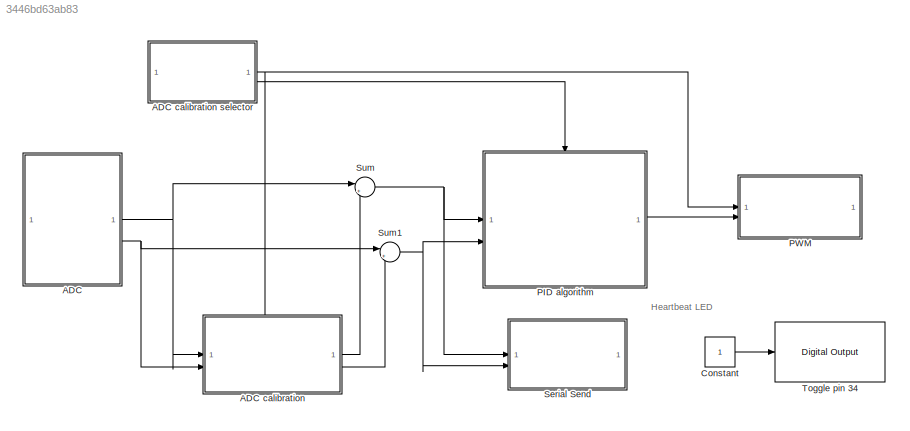
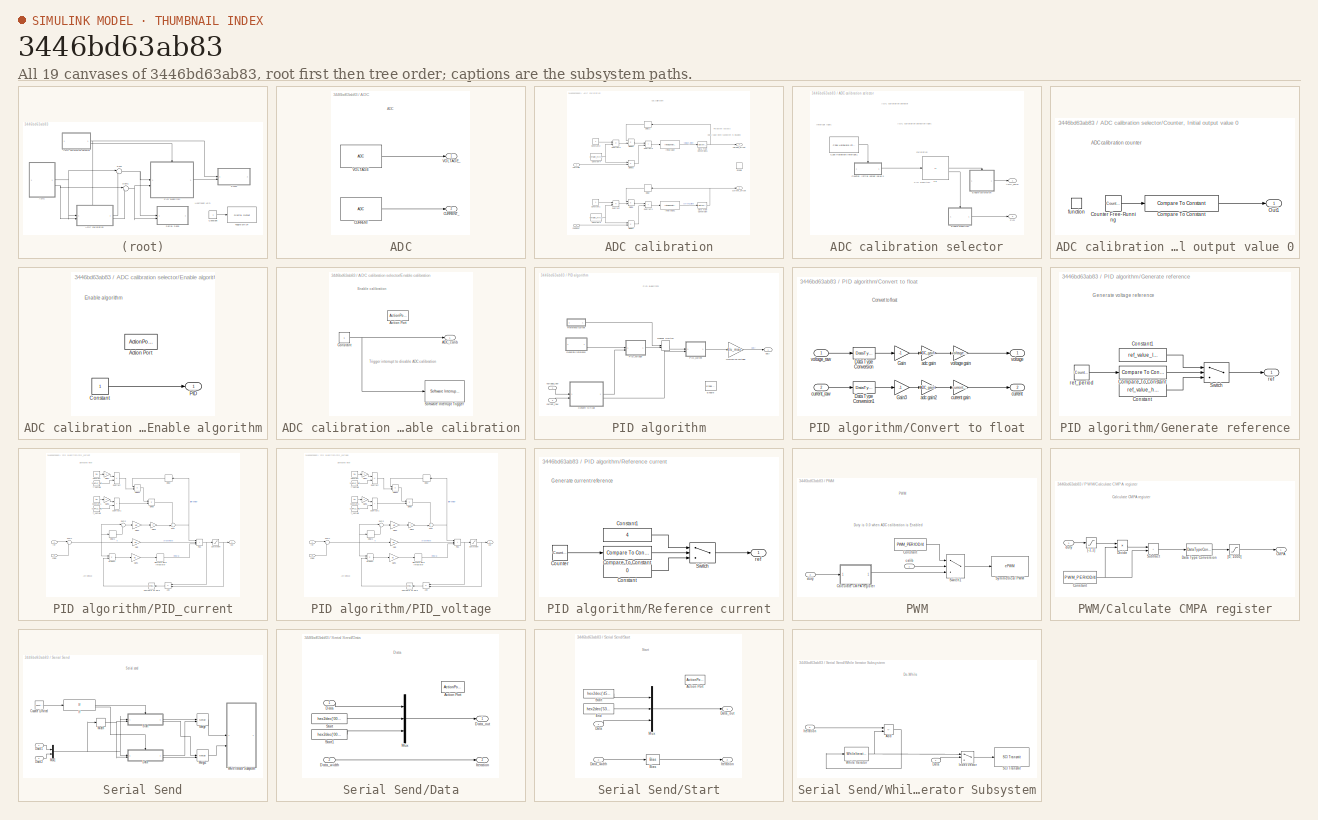
[diagram: thumbnail index - all 19 canvases of the model, root first then tree order]
MODEL slx_3446bd63ab83
KIND model
CONFIG AbsTol = auto
CONFIG EnableMultiTasking = off
CONFIG FixedStep = 0.0001
CONFIG InitFcn = parametri_embedded
CONFIG MaxStep = auto
CONFIG MinStep = auto
CONFIG RelTol = 1e-3
CONFIG SampleTimeConstraint = Unconstrained
CONFIG SolverName = VariableStepAuto
CONFIG StartTime = 0.0
CONFIG StopTime = 0.04
BLOCK [SubSystem] ADC
BLOCK [SubSystem] ADC calibration
BLOCK [SubSystem] ADC calibration selector
BLOCK [Outport] ADC calibration selector/ADC_calib
BLOCK [Reference] ADC calibration selector/C28x Hardware Interrupt1  REF=c2000lib/Scheduling/C28x Hardware Interrupt
  SourceBlock = c2000lib/Scheduling/C28x Hardware Interrupt
  SourceType = C28x Interrupt Block
BLOCK [SubSystem] ADC calibration selector/Counter, Initial output value 0
  TreatAsAtomicUnit = on
BLOCK [Reference] ADC calibration selector/Counter, Initial output value 0/Compare To Constant  REF=simulink/Logic and Bit
Operations/Compare
To Constant
  SourceBlock = simulink/Logic and Bit\nOperations/Compare\nTo Constant
  SourceType = Compare To Constant
BLOCK [Reference] ADC calibration selector/Counter, Initial output value 0/Counter Free-Running  REF=simulink/Sources/Counter
Free-Running
  SourceBlock = simulink/Sources/Counter\nFree-Running
  SourceType = Counter Free-Running
BLOCK [Outport] ADC calibration selector/Counter, Initial output value 0/Out1
  InitialOutput = [0]
BLOCK [TriggerPort] ADC calibration selector/Counter, Initial output value 0/function
  StatesWhenEnabling = held
  TriggerType = function-call
  VariantControl = (inherit)
BLOCK [SubSystem] ADC calibration selector/Enable algorithm
  TreatAsAtomicUnit = on
BLOCK [ActionPort] ADC calibration selector/Enable algorithm/Action Port
  ActionPortLabel = else
BLOCK [Constant] ADC calibration selector/Enable algorithm/Constant
BLOCK [Outport] ADC calibration selector/Enable algorithm/PID
  InitialOutput = [0]
  OutputWhenDisabled = reset
BLOCK [SubSystem] ADC calibration selector/Enable calibration
  TreatAsAtomicUnit = on
BLOCK [Outport] ADC calibration selector/Enable calibration/ADC_calib
  InitialOutput = [0]
  OutputWhenDisabled = reset
BLOCK [ActionPort] ADC calibration selector/Enable calibration/Action Port
  ActionPortLabel = if(u1 == 0)
BLOCK [Constant] ADC calibration selector/Enable calibration/Constant
BLOCK [Reference] ADC calibration selector/Enable calibration/Software Interrupt Trigger  REF=c280xlib/Software Interrupt Trigger
  LibrarySourceBlock = c2806xlib/Software Interrupt Trigger
  SourceBlock = c280xlib/Software Interrupt Trigger
  SourceType = Software Interrupt Trigger
BLOCK [If] ADC calibration selector/If1
  IfExpression = u1 == 0
BLOCK [Outport] ADC calibration selector/PID
  Port = 2
BLOCK [Inport] ADC calibration/CURRENT
  Port = 2
BLOCK [Constant] ADC calibration/Constant1
BLOCK [Constant] ADC calibration/Constant2
BLOCK [Constant] ADC calibration/Constant3
  Value = offset_filter
BLOCK [Constant] ADC calibration/Constant4
  Value = offset_filter
BLOCK [DataTypeConversion] ADC calibration/Data Type Conversion
  OutDataTypeStr = int16
  RndMeth = Floor
  SaturateOnIntegerOverflow = off
BLOCK [DataTypeConversion] ADC calibration/Data Type Conversion1
  OutDataTypeStr = int16
  RndMeth = Floor
  SaturateOnIntegerOverflow = off
BLOCK [Delay] ADC calibration/Delay
  DelayLength = 1
  InputPortMap = u0
  NameLocation = top
BLOCK [Delay] ADC calibration/Delay1
  DelayLength = 1
  InputPortMap = u0
  NameLocation = top
BLOCK [Product] ADC calibration/Divide
  Inputs = **
BLOCK [Product] ADC calibration/Divide1
  Inputs = **
BLOCK [Product] ADC calibration/Divide2
  Inputs = **
BLOCK [Product] ADC calibration/Divide3
  Inputs = **
BLOCK [EnablePort] ADC calibration/Enable
BLOCK [InitialCondition] ADC calibration/Initial value
  Value = voltage_offset
BLOCK [InitialCondition] ADC calibration/Initial value1
  Value = current_offset
BLOCK [Sum] ADC calibration/Subtract
  IconShape = rectangular
  Inputs = +-
BLOCK [Sum] ADC calibration/Subtract1
  IconShape = rectangular
BLOCK [Sum] ADC calibration/Subtract2
  IconShape = rectangular
  Inputs = +-
BLOCK [Sum] ADC calibration/Subtract3
  IconShape = rectangular
BLOCK [Inport] ADC calibration/VOLTAGE
BLOCK [Outport] ADC calibration/current_offset
  OutDataTypeStr = int16
  Port = 2
BLOCK [Outport] ADC calibration/voltage_offset
  OutDataTypeStr = int16
BLOCK [Reference] ADC/CURRENT  REF=c2802xlib/ADC
  LibrarySourceBlock = c2806xlib/ADC
  SourceBlock = c2802xlib/ADC
  SourceType = ADC Type 3-5
  UserDataPersistent = on
BLOCK [Outport] ADC/CURRENT_
  Port = 2
BLOCK [Reference] ADC/VOLTAGE  REF=c2802xlib/ADC
  LibrarySourceBlock = c2806xlib/ADC
  SourceBlock = c2802xlib/ADC
  SourceType = ADC Type 3-5
  UserDataPersistent = on
BLOCK [Outport] ADC/VOLTAGE_
BLOCK [Constant] Constant
  SampleTime = 0.7
BLOCK [SubSystem] PID algorithm
BLOCK [SubSystem] PID algorithm/Convert to float
BLOCK [DataTypeConversion] PID algorithm/Convert to float/Data Type Conversion
  OutDataTypeStr = single
  RndMeth = Floor
  SaturateOnIntegerOverflow = off
BLOCK [DataTypeConversion] PID algorithm/Convert to float/Data Type Conversion1
  OutDataTypeStr = single
  RndMeth = Floor
  SaturateOnIntegerOverflow = off
BLOCK [Gain] PID algorithm/Convert to float/Gain
  Gain = -1
BLOCK [Gain] PID algorithm/Convert to float/Gain3
  Gain = -1
BLOCK [Gain] PID algorithm/Convert to float/adc gain
  Gain = ADC_gain
BLOCK [Gain] PID algorithm/Convert to float/adc gain2
  Gain = ADC_gain
BLOCK [Outport] PID algorithm/Convert to float/current
  Port = 2
BLOCK [Gain] PID algorithm/Convert to float/current gain
  Gain = current_gain
BLOCK [Inport] PID algorithm/Convert to float/current_raw
  Port = 2
BLOCK [Outport] PID algorithm/Convert to float/voltage
BLOCK [Gain] PID algorithm/Convert to float/voltage gain
  Gain = voltage_gain
BLOCK [Inport] PID algorithm/Convert to float/voltage_raw
BLOCK [EnablePort] PID algorithm/Enable
BLOCK [SubSystem] PID algorithm/Generate reference
BLOCK [Reference] PID algorithm/Generate reference/Compare To Constant  REF=simulink/Logic and Bit
Operations/Compare
To Constant
  SourceBlock = simulink/Logic and Bit\nOperations/Compare\nTo Constant
  SourceType = Compare To Constant
BLOCK [Constant] PID algorithm/Generate reference/Constant
  SampleTime = -1
  Value = ref_value_high
BLOCK [Constant] PID algorithm/Generate reference/Constant1
  SampleTime = -1
  Value = ref_value_low
BLOCK [Switch] PID algorithm/Generate reference/Switch
  Criteria = u2 > Threshold
  InputSameDT = off
  SaturateOnIntegerOverflow = off
BLOCK [Outport] PID algorithm/Generate reference/ref
BLOCK [Reference] PID algorithm/Generate reference/ref_period  REF=simulink/Sources/Counter
Limited
  SourceBlock = simulink/Sources/Counter\nLimited
  SourceType = Counter Limited
BLOCK [ManualSwitch] PID algorithm/Manual Switch
  CurrentSetting = 0
BLOCK [Gain] PID algorithm/Normalize voltage
  Gain = 1/u_max
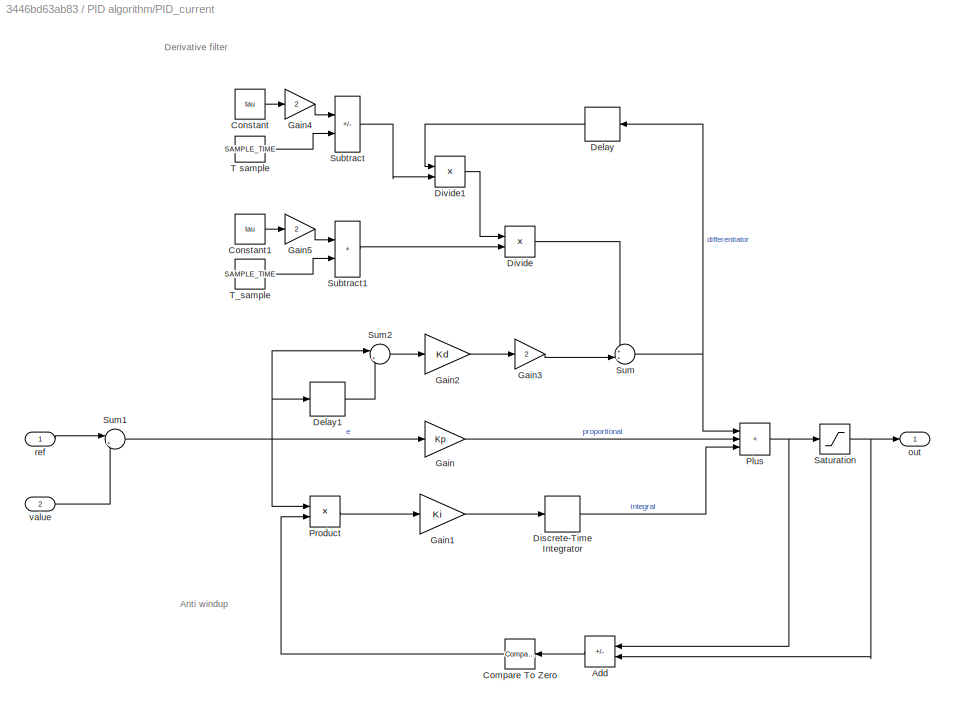
BLOCK [SubSystem] PID algorithm/PID_current
BLOCK [Sum] PID algorithm/PID_current/Add
  IconShape = rectangular
  Inputs = +-
  NameLocation = top
BLOCK [Reference] PID algorithm/PID_current/Compare To Zero  REF=simulink/Logic and Bit
Operations/Compare
To Zero
  NameLocation = top
  SourceBlock = simulink/Logic and Bit\nOperations/Compare\nTo Zero
  SourceType = Compare To Zero
BLOCK [Constant] PID algorithm/PID_current/Constant
  Value = tau
BLOCK [Constant] PID algorithm/PID_current/Constant1
  Value = tau
BLOCK [Delay] PID algorithm/PID_current/Delay
  DelayLength = 1
  InputPortMap = u0
  NameLocation = top
BLOCK [Delay] PID algorithm/PID_current/Delay1
  DelayLength = 1
  InputPortMap = u0
BLOCK [DiscreteIntegrator] PID algorithm/PID_current/Discrete-Time Integrator
  ICPrevOutput = DiscIntNeverNeededParam
  ICPrevScaledInput = DiscIntNeverNeededParam
  InitialConditionSetting = Auto
  SampleTime = -1
BLOCK [Product] PID algorithm/PID_current/Divide
  Inputs = */
BLOCK [Product] PID algorithm/PID_current/Divide1
  Inputs = **
BLOCK [Gain] PID algorithm/PID_current/Gain
  Gain = Kp
BLOCK [Gain] PID algorithm/PID_current/Gain1
  Gain = Ki
BLOCK [Gain] PID algorithm/PID_current/Gain2
  Gain = Kd
BLOCK [Gain] PID algorithm/PID_current/Gain3
  Gain = 2
BLOCK [Gain] PID algorithm/PID_current/Gain4
  Gain = 2
BLOCK [Gain] PID algorithm/PID_current/Gain5
  Gain = 2
BLOCK [Sum] PID algorithm/PID_current/Plus
  IconShape = rectangular
  Inputs = +++
BLOCK [Product] PID algorithm/PID_current/Product
BLOCK [Saturate] PID algorithm/PID_current/Saturation
  LowerLimit = -lim
  UpperLimit = lim
BLOCK [Sum] PID algorithm/PID_current/Subtract
  IconShape = rectangular
  Inputs = +-
BLOCK [Sum] PID algorithm/PID_current/Subtract1
  IconShape = rectangular
BLOCK [Sum] PID algorithm/PID_current/Sum
  Inputs = ++|
BLOCK [Sum] PID algorithm/PID_current/Sum1
  Inputs = |+-
BLOCK [Sum] PID algorithm/PID_current/Sum2
  Inputs = |+-
BLOCK [Constant] PID algorithm/PID_current/T sample
  Value = SAMPLE_TIME
BLOCK [Constant] PID algorithm/PID_current/T_sample
  Value = SAMPLE_TIME
BLOCK [Outport] PID algorithm/PID_current/out
BLOCK [Inport] PID algorithm/PID_current/ref
BLOCK [Inport] PID algorithm/PID_current/value
  Port = 2
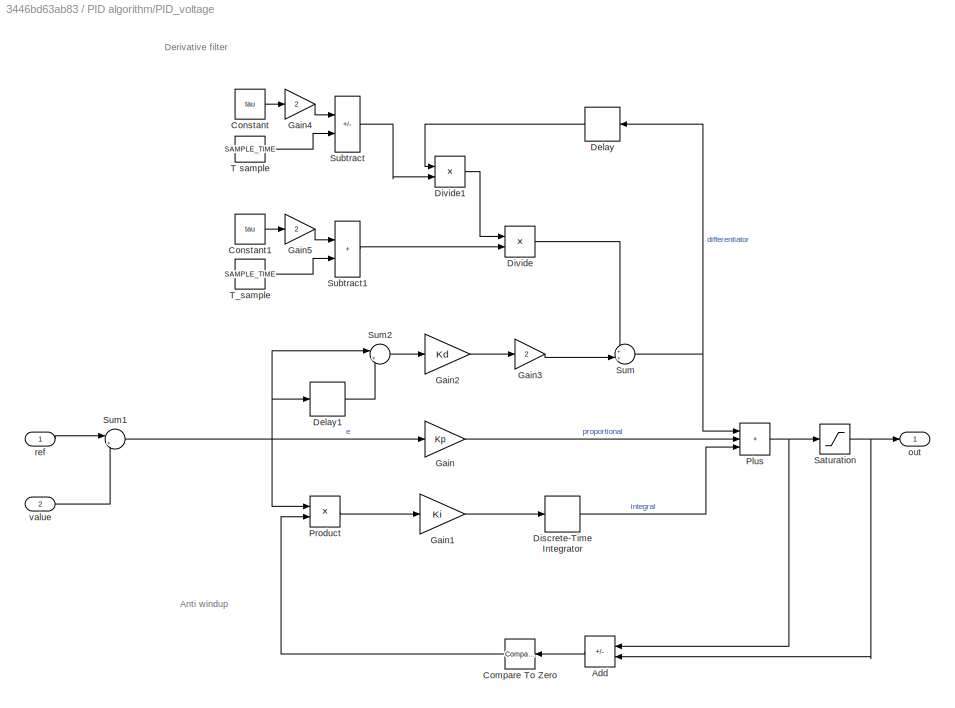
BLOCK [SubSystem] PID algorithm/PID_voltage
BLOCK [Sum] PID algorithm/PID_voltage/Add
  IconShape = rectangular
  Inputs = +-
  NameLocation = top
BLOCK [Reference] PID algorithm/PID_voltage/Compare To Zero  REF=simulink/Logic and Bit
Operations/Compare
To Zero
  NameLocation = top
  SourceBlock = simulink/Logic and Bit\nOperations/Compare\nTo Zero
  SourceType = Compare To Zero
BLOCK [Constant] PID algorithm/PID_voltage/Constant
  Value = tau
BLOCK [Constant] PID algorithm/PID_voltage/Constant1
  Value = tau
BLOCK [Delay] PID algorithm/PID_voltage/Delay
  DelayLength = 1
  InputPortMap = u0
  NameLocation = top
BLOCK [Delay] PID algorithm/PID_voltage/Delay1
  DelayLength = 1
  InputPortMap = u0
BLOCK [DiscreteIntegrator] PID algorithm/PID_voltage/Discrete-Time Integrator
  ICPrevOutput = DiscIntNeverNeededParam
  ICPrevScaledInput = DiscIntNeverNeededParam
  InitialConditionSetting = Auto
  SampleTime = -1
BLOCK [Product] PID algorithm/PID_voltage/Divide
  Inputs = */
BLOCK [Product] PID algorithm/PID_voltage/Divide1
  Inputs = **
BLOCK [Gain] PID algorithm/PID_voltage/Gain
  Gain = Kp
BLOCK [Gain] PID algorithm/PID_voltage/Gain1
  Gain = Ki
BLOCK [Gain] PID algorithm/PID_voltage/Gain2
  Gain = Kd
BLOCK [Gain] PID algorithm/PID_voltage/Gain3
  Gain = 2
BLOCK [Gain] PID algorithm/PID_voltage/Gain4
  Gain = 2
BLOCK [Gain] PID algorithm/PID_voltage/Gain5
  Gain = 2
BLOCK [Sum] PID algorithm/PID_voltage/Plus
  IconShape = rectangular
  Inputs = +++
BLOCK [Product] PID algorithm/PID_voltage/Product
BLOCK [Saturate] PID algorithm/PID_voltage/Saturation
  LowerLimit = -lim
  UpperLimit = lim
BLOCK [Sum] PID algorithm/PID_voltage/Subtract
  IconShape = rectangular
  Inputs = +-
BLOCK [Sum] PID algorithm/PID_voltage/Subtract1
  IconShape = rectangular
BLOCK [Sum] PID algorithm/PID_voltage/Sum
  Inputs = ++|
BLOCK [Sum] PID algorithm/PID_voltage/Sum1
  Inputs = |+-
BLOCK [Sum] PID algorithm/PID_voltage/Sum2
  Inputs = |+-
BLOCK [Constant] PID algorithm/PID_voltage/T sample
  Value = SAMPLE_TIME
BLOCK [Constant] PID algorithm/PID_voltage/T_sample
  Value = SAMPLE_TIME
BLOCK [Outport] PID algorithm/PID_voltage/out
BLOCK [Inport] PID algorithm/PID_voltage/ref
BLOCK [Inport] PID algorithm/PID_voltage/value
  Port = 2
BLOCK [SubSystem] PID algorithm/Reference current
BLOCK [Reference] PID algorithm/Reference current/Compare To Constant  REF=simulink/Logic and Bit
Operations/Compare
To Constant
  SourceBlock = simulink/Logic and Bit\nOperations/Compare\nTo Constant
  SourceType = Compare To Constant
BLOCK [Constant] PID algorithm/Reference current/Constant
  SampleTime = -1
  Value = 0
BLOCK [Constant] PID algorithm/Reference current/Constant1
  SampleTime = -1
  Value = 4
BLOCK [Reference] PID algorithm/Reference current/Counter  REF=simulink/Sources/Counter
Limited
  SourceBlock = simulink/Sources/Counter\nLimited
  SourceType = Counter Limited
BLOCK [Switch] PID algorithm/Reference current/Switch
  Criteria = u2 > Threshold
  InputSameDT = off
  SaturateOnIntegerOverflow = off
BLOCK [Outport] PID algorithm/Reference current/ref
BLOCK [Inport] PID algorithm/current_raw
  Port = 2
BLOCK [Outport] PID algorithm/duty
BLOCK [Inport] PID algorithm/voltage_raw
  NameLocation = top
BLOCK [SubSystem] PWM
BLOCK [SubSystem] PWM/Calculate CMPA register
BLOCK [Outport] PWM/Calculate CMPA register/CMPA
BLOCK [Constant] PWM/Calculate CMPA register/Constant
  SampleTime = -1
  Value = PWM_PERIOD/4
BLOCK [DataTypeConversion] PWM/Calculate CMPA register/Data Type Conversion
  OutDataTypeStr = uint16
  RndMeth = Floor
  SaturateOnIntegerOverflow = off
BLOCK [Product] PWM/Calculate CMPA register/Divide
  Inputs = **
BLOCK [Sum] PWM/Calculate CMPA register/Subtract
  IconShape = rectangular
BLOCK [Saturate] PWM/Calculate CMPA register/[-1,1]
  LowerLimit = -1
  UpperLimit = 1
BLOCK [Saturate] PWM/Calculate CMPA register/[0, 1000]
  LowerLimit = 0
  UpperLimit = PWM_PERIOD/2
BLOCK [Inport] PWM/Calculate CMPA register/duty
BLOCK [Constant] PWM/Constant
  SampleTime = -1
  Value = PWM_PERIOD/4
BLOCK [Switch] PWM/Switch1
  Criteria = u2 > Threshold
  InputSameDT = off
  SaturateOnIntegerOverflow = off
BLOCK [Reference] PWM/Symmetrical PWM  REF=c2802xlib/ePWM
  LibrarySourceBlock = c2806xlib/ePWM
  SourceBlock = c2802xlib/ePWM
  SourceType = ePWM Type 1-4
  UserDataPersistent = on
BLOCK [Inport] PWM/calib
BLOCK [Inport] PWM/duty
  Port = 2
BLOCK [SubSystem] Serial Send
BLOCK [Reference] Serial Send/Counter Limited  REF=simulink/Sources/Counter
Limited
  SourceBlock = simulink/Sources/Counter\nLimited
  SourceType = Counter Limited
BLOCK [SubSystem] Serial Send/Data
  TreatAsAtomicUnit = on
BLOCK [Inport] Serial Send/Data 1
BLOCK [Inport] Serial Send/Data 2
  Port = 2
BLOCK [ActionPort] Serial Send/Data/Action Port
  ActionPortLabel = else
BLOCK [Inport] Serial Send/Data/Data
BLOCK [Outport] Serial Send/Data/Data_out
BLOCK [Inport] Serial Send/Data/Data_width
  Port = 2
BLOCK [Outport] Serial Send/Data/Iteration
  Port = 2
BLOCK [Mux] Serial Send/Data/Mux
  DisplayOption = bar
  Inputs = 3
BLOCK [Constant] Serial Send/Data/Start
  OutDataTypeStr = int16
  Value = hex2dec('0000')
BLOCK [Constant] Serial Send/Data/Start1
  OutDataTypeStr = int16
  Value = hex2dec('0000')
BLOCK [If] Serial Send/If
  IfExpression = u1 == 0
BLOCK [Merge] Serial Send/Merge
BLOCK [Merge] Serial Send/Merge1
BLOCK [Mux] Serial Send/Mux1
  DisplayOption = bar
  Inputs = 2
BLOCK [SubSystem] Serial Send/Start
  TreatAsAtomicUnit = on
BLOCK [ActionPort] Serial Send/Start/Action Port
  ActionPortLabel = if(u1 == 0)
BLOCK [Bias] Serial Send/Start/Bias
  Bias = 2
  SaturateOnIntegerOverflow = off
BLOCK [Inport] Serial Send/Start/Data
BLOCK [Outport] Serial Send/Start/Data_out
BLOCK [Inport] Serial Send/Start/Data_width
  Port = 2
BLOCK [Constant] Serial Send/Start/End
  OutDataTypeStr = int16
  Value = hex2dec('5353')
BLOCK [Outport] Serial Send/Start/Iteration
  Port = 2
BLOCK [Mux] Serial Send/Start/Mux
  DisplayOption = bar
  Inputs = 3
BLOCK [Constant] Serial Send/Start/Start
  OutDataTypeStr = int16
  Value = hex2dec('4545')
BLOCK [SubSystem] Serial Send/While Iterator Subsystem
  TreatAsAtomicUnit = on
BLOCK [Sum] Serial Send/While Iterator Subsystem/Add
  IconShape = rectangular
  Inputs = +-
  OutDataTypeStr = Inherit: Same as first input
BLOCK [Inport] Serial Send/While Iterator Subsystem/Data
BLOCK [MultiPortSwitch] Serial Send/While Iterator Subsystem/Index Vector
  InputSameDT = off
  Inputs = 1
  SaturateOnIntegerOverflow = off
BLOCK [Inport] Serial Send/While Iterator Subsystem/Iteration
  Port = 2
BLOCK [Reference] Serial Send/While Iterator Subsystem/SCI Transmit  REF=c280xlib/SCI Transmit
  SourceBlock = c280xlib/SCI Transmit
  SourceType = C28x SCI Transmit
BLOCK [WhileIterator] Serial Send/While Iterator Subsystem/While Iterator
  MaxIters = -1
  OutputDataType = int16
  ShowIterationPort = on
  WhileBlockType = do-while
BLOCK [Width] Serial Send/Width
  DataType = uint16
  OutDataTypeMode = All ports same datatype
BLOCK [Sum] Sum
  Inputs = |+-
  OutDataTypeStr = Inherit: Same as first input
BLOCK [Sum] Sum1
  Inputs = |+-
  OutDataTypeStr = Inherit: Same as first input
BLOCK [Reference] Toggle pin 34  REF=c2806xlib/Digital Output
  SourceBlock = c2806xlib/Digital Output
  SourceType = C2806x GPIO Digital Output
  UserDataPersistent = on
ANNOTATION (root): Heartbeat LED
ANNOTATION ADC: ADC
ANNOTATION ADC calibration: ADC calibration
ANNOTATION ADC calibration: Holds value when subsistem is disabled
ANNOTATION ADC calibration: Persistent outputs
ANNOTATION ADC calibration selector: ADC calibration selector
ANNOTATION ADC calibration selector: ADC calibration selection logic
ANNOTATION ADC calibration selector: Interrupt logic
ANNOTATION ADC calibration selector: PID algorithm
ANNOTATION ADC calibration selector: calibration
ANNOTATION ADC calibration selector/Counter, Initial output value 0: ADC calibration counter
ANNOTATION ADC calibration selector/Enable algorithm: Enable algorithm
ANNOTATION ADC calibration selector/Enable calibration: Enable calibration
ANNOTATION ADC calibration selector/Enable calibration: Trigger interrupt to disable ADC calibration
ANNOTATION PID algorithm: PID algorithm
ANNOTATION PID algorithm/Convert to float: Convert to float
ANNOTATION PID algorithm/Generate reference: Generate voltage reference
ANNOTATION PID algorithm/PID_current: Anti windup
ANNOTATION PID algorithm/PID_current: Derivative filter
ANNOTATION PID algorithm/PID_voltage: Anti windup
ANNOTATION PID algorithm/PID_voltage: Derivative filter
ANNOTATION PID algorithm/Reference current: Generate current reference
ANNOTATION PWM: PWM
ANNOTATION PWM: Duty is 0.0 when ADC calibration is Enabled
ANNOTATION PWM/Calculate CMPA register: Calculate CMPA register
ANNOTATION Serial Send: Serial send
ANNOTATION Serial Send/Data: Data
ANNOTATION Serial Send/Start: Start
ANNOTATION Serial Send/While Iterator Subsystem: Do-While
LINE ADC calibration selector/C28x Hardware Interrupt1:1 -> ADC calibration selector/Counter, Initial output value 0:trigger
LINE ADC calibration selector/Counter, Initial output value 0/Compare To Constant:1 -> ADC calibration selector/Counter, Initial output value 0/Out1:1
LINE ADC calibration selector/Counter, Initial output value 0/Counter Free-Running:1 -> ADC calibration selector/Counter, Initial output value 0/Compare To Constant:1
LINE ADC calibration selector/Counter, Initial output value 0:1 -> ADC calibration selector/If1:1
LINE ADC calibration selector/Enable algorithm/Constant:1 -> ADC calibration selector/Enable algorithm/PID:1
LINE ADC calibration selector/Enable algorithm:1 -> ADC calibration selector/PID:1
NET ADC calibration selector/Enable calibration/Constant:1 -> ADC calibration selector/Enable calibration/ADC_calib:1, ADC calibration selector/Enable calibration/Software Interrupt Trigger:1
LINE ADC calibration selector/Enable calibration:1 -> ADC calibration selector/ADC_calib:1
LINE ADC calibration selector/If1:1 -> ADC calibration selector/Enable calibration:ifaction
LINE ADC calibration selector/If1:2 -> ADC calibration selector/Enable algorithm:ifaction
NET ADC calibration selector:1 -> ADC calibration:enable, PWM:1
LINE ADC calibration selector:2 -> PID algorithm:enable
LINE ADC calibration/CURRENT:1 -> ADC calibration/Divide1:2
LINE ADC calibration/Constant1:1 -> ADC calibration/Subtract:1
LINE ADC calibration/Constant2:1 -> ADC calibration/Subtract2:1
NET ADC calibration/Constant3:1 -> ADC calibration/Divide1:1, ADC calibration/Subtract:2
NET ADC calibration/Constant4:1 -> ADC calibration/Divide3:1, ADC calibration/Subtract2:2
NET ADC calibration/Data Type Conversion1:1 -> ADC calibration/Delay1:1, ADC calibration/voltage_offset:1
NET ADC calibration/Data Type Conversion:1 -> ADC calibration/Delay:1, ADC calibration/current_offset:1
LINE ADC calibration/Delay1:1 -> ADC calibration/Divide2:1
LINE ADC calibration/Delay:1 -> ADC calibration/Divide:1
LINE ADC calibration/Divide1:1 -> ADC calibration/Subtract1:2
LINE ADC calibration/Divide2:1 -> ADC calibration/Subtract3:1
LINE ADC calibration/Divide3:1 -> ADC calibration/Subtract3:2
LINE ADC calibration/Divide:1 -> ADC calibration/Subtract1:1
LINE ADC calibration/Initial value1:1 -> ADC calibration/Data Type Conversion:1
LINE ADC calibration/Initial value:1 -> ADC calibration/Data Type Conversion1:1
LINE ADC calibration/Subtract1:1 -> ADC calibration/Initial value1:1
LINE ADC calibration/Subtract2:1 -> ADC calibration/Divide2:2
LINE ADC calibration/Subtract3:1 -> ADC calibration/Initial value:1
LINE ADC calibration/Subtract:1 -> ADC calibration/Divide:2
LINE ADC calibration/VOLTAGE:1 -> ADC calibration/Divide3:2
LINE ADC calibration:1 -> Sum:2
LINE ADC calibration:2 -> Sum1:2
LINE ADC/CURRENT:1 -> ADC/CURRENT_:1
LINE ADC/VOLTAGE:1 -> ADC/VOLTAGE_:1
NET ADC:1 -> ADC calibration:1, Sum:1
NET ADC:2 -> ADC calibration:2, Sum1:1
LINE Constant:1 -> Toggle pin 34:1
LINE PID algorithm/Convert to float/Data Type Conversion1:1 -> PID algorithm/Convert to float/Gain3:1
LINE PID algorithm/Convert to float/Data Type Conversion:1 -> PID algorithm/Convert to float/Gain:1
LINE PID algorithm/Convert to float/Gain3:1 -> PID algorithm/Convert to float/adc gain2:1
LINE PID algorithm/Convert to float/Gain:1 -> PID algorithm/Convert to float/adc gain:1
LINE PID algorithm/Convert to float/adc gain2:1 -> PID algorithm/Convert to float/current gain:1
LINE PID algorithm/Convert to float/adc gain:1 -> PID algorithm/Convert to float/voltage gain:1
LINE PID algorithm/Convert to float/current gain:1 -> PID algorithm/Convert to float/current:1
LINE PID algorithm/Convert to float/current_raw:1 -> PID algorithm/Convert to float/Data Type Conversion1:1
LINE PID algorithm/Convert to float/voltage gain:1 -> PID algorithm/Convert to float/voltage:1
LINE PID algorithm/Convert to float/voltage_raw:1 -> PID algorithm/Convert to float/Data Type Conversion:1
LINE PID algorithm/Convert to float:1 -> PID algorithm/PID_voltage:2
LINE PID algorithm/Convert to float:2 -> PID algorithm/PID_current:2
LINE PID algorithm/Generate reference/Compare To Constant:1 -> PID algorithm/Generate reference/Switch:2
LINE PID algorithm/Generate reference/Constant1:1 -> PID algorithm/Generate reference/Switch:1
LINE PID algorithm/Generate reference/Constant:1 -> PID algorithm/Generate reference/Switch:3
LINE PID algorithm/Generate reference/Switch:1 -> PID algorithm/Generate reference/ref:1
LINE PID algorithm/Generate reference/ref_period:1 -> PID algorithm/Generate reference/Compare To Constant:1
LINE PID algorithm/Generate reference:1 -> PID algorithm/PID_voltage:1
LINE PID algorithm/Manual Switch:1 -> PID algorithm/PID_current:1
LINE PID algorithm/Normalize voltage:1 -> PID algorithm/duty:1
LINE PID algorithm/PID_current/Add:1 -> PID algorithm/PID_current/Compare To Zero:1
LINE PID algorithm/PID_current/Compare To Zero:1 -> PID algorithm/PID_current/Product:2
LINE PID algorithm/PID_current/Constant1:1 -> PID algorithm/PID_current/Gain5:1
LINE PID algorithm/PID_current/Constant:1 -> PID algorithm/PID_current/Gain4:1
LINE PID algorithm/PID_current/Delay1:1 -> PID algorithm/PID_current/Sum2:2
LINE PID algorithm/PID_current/Delay:1 -> PID algorithm/PID_current/Divide1:1
LINE PID algorithm/PID_current/Discrete-Time Integrator:1 -> PID algorithm/PID_current/Plus:3
LINE PID algorithm/PID_current/Divide1:1 -> PID algorithm/PID_current/Divide:1
LINE PID algorithm/PID_current/Divide:1 -> PID algorithm/PID_current/Sum:1
LINE PID algorithm/PID_current/Gain1:1 -> PID algorithm/PID_current/Discrete-Time Integrator:1
LINE PID algorithm/PID_current/Gain2:1 -> PID algorithm/PID_current/Gain3:1
LINE PID algorithm/PID_current/Gain3:1 -> PID algorithm/PID_current/Sum:2
LINE PID algorithm/PID_current/Gain4:1 -> PID algorithm/PID_current/Subtract:1
LINE PID algorithm/PID_current/Gain5:1 -> PID algorithm/PID_current/Subtract1:1
LINE PID algorithm/PID_current/Gain:1 -> PID algorithm/PID_current/Plus:2
NET PID algorithm/PID_current/Plus:1 -> PID algorithm/PID_current/Add:1, PID algorithm/PID_current/Saturation:1
LINE PID algorithm/PID_current/Product:1 -> PID algorithm/PID_current/Gain1:1
NET PID algorithm/PID_current/Saturation:1 -> PID algorithm/PID_current/Add:2, PID algorithm/PID_current/out:1
LINE PID algorithm/PID_current/Subtract1:1 -> PID algorithm/PID_current/Divide:2
LINE PID algorithm/PID_current/Subtract:1 -> PID algorithm/PID_current/Divide1:2
NET PID algorithm/PID_current/Sum1:1 -> PID algorithm/PID_current/Delay1:1, PID algorithm/PID_current/Gain:1, PID algorithm/PID_current/Product:1, PID algorithm/PID_current/Sum2:1
LINE PID algorithm/PID_current/Sum2:1 -> PID algorithm/PID_current/Gain2:1
NET PID algorithm/PID_current/Sum:1 -> PID algorithm/PID_current/Delay:1, PID algorithm/PID_current/Plus:1
LINE PID algorithm/PID_current/T sample:1 -> PID algorithm/PID_current/Subtract:2
LINE PID algorithm/PID_current/T_sample:1 -> PID algorithm/PID_current/Subtract1:2
LINE PID algorithm/PID_current/ref:1 -> PID algorithm/PID_current/Sum1:1
LINE PID algorithm/PID_current/value:1 -> PID algorithm/PID_current/Sum1:2
LINE PID algorithm/PID_current:1 -> PID algorithm/Normalize voltage:1
LINE PID algorithm/PID_voltage/Add:1 -> PID algorithm/PID_voltage/Compare To Zero:1
LINE PID algorithm/PID_voltage/Compare To Zero:1 -> PID algorithm/PID_voltage/Product:2
LINE PID algorithm/PID_voltage/Constant1:1 -> PID algorithm/PID_voltage/Gain5:1
LINE PID algorithm/PID_voltage/Constant:1 -> PID algorithm/PID_voltage/Gain4:1
LINE PID algorithm/PID_voltage/Delay1:1 -> PID algorithm/PID_voltage/Sum2:2
LINE PID algorithm/PID_voltage/Delay:1 -> PID algorithm/PID_voltage/Divide1:1
LINE PID algorithm/PID_voltage/Discrete-Time Integrator:1 -> PID algorithm/PID_voltage/Plus:3
LINE PID algorithm/PID_voltage/Divide1:1 -> PID algorithm/PID_voltage/Divide:1
LINE PID algorithm/PID_voltage/Divide:1 -> PID algorithm/PID_voltage/Sum:1
LINE PID algorithm/PID_voltage/Gain1:1 -> PID algorithm/PID_voltage/Discrete-Time Integrator:1
LINE PID algorithm/PID_voltage/Gain2:1 -> PID algorithm/PID_voltage/Gain3:1
LINE PID algorithm/PID_voltage/Gain3:1 -> PID algorithm/PID_voltage/Sum:2
LINE PID algorithm/PID_voltage/Gain4:1 -> PID algorithm/PID_voltage/Subtract:1
LINE PID algorithm/PID_voltage/Gain5:1 -> PID algorithm/PID_voltage/Subtract1:1
LINE PID algorithm/PID_voltage/Gain:1 -> PID algorithm/PID_voltage/Plus:2
NET PID algorithm/PID_voltage/Plus:1 -> PID algorithm/PID_voltage/Add:1, PID algorithm/PID_voltage/Saturation:1
LINE PID algorithm/PID_voltage/Product:1 -> PID algorithm/PID_voltage/Gain1:1
NET PID algorithm/PID_voltage/Saturation:1 -> PID algorithm/PID_voltage/Add:2, PID algorithm/PID_voltage/out:1
LINE PID algorithm/PID_voltage/Subtract1:1 -> PID algorithm/PID_voltage/Divide:2
LINE PID algorithm/PID_voltage/Subtract:1 -> PID algorithm/PID_voltage/Divide1:2
NET PID algorithm/PID_voltage/Sum1:1 -> PID algorithm/PID_voltage/Delay1:1, PID algorithm/PID_voltage/Gain:1, PID algorithm/PID_voltage/Product:1, PID algorithm/PID_voltage/Sum2:1
LINE PID algorithm/PID_voltage/Sum2:1 -> PID algorithm/PID_voltage/Gain2:1
NET PID algorithm/PID_voltage/Sum:1 -> PID algorithm/PID_voltage/Delay:1, PID algorithm/PID_voltage/Plus:1
LINE PID algorithm/PID_voltage/T sample:1 -> PID algorithm/PID_voltage/Subtract:2
LINE PID algorithm/PID_voltage/T_sample:1 -> PID algorithm/PID_voltage/Subtract1:2
LINE PID algorithm/PID_voltage/ref:1 -> PID algorithm/PID_voltage/Sum1:1
LINE PID algorithm/PID_voltage/value:1 -> PID algorithm/PID_voltage/Sum1:2
LINE PID algorithm/PID_voltage:1 -> PID algorithm/Manual Switch:2
LINE PID algorithm/Reference current/Compare To Constant:1 -> PID algorithm/Reference current/Switch:2
LINE PID algorithm/Reference current/Constant1:1 -> PID algorithm/Reference current/Switch:1
LINE PID algorithm/Reference current/Constant:1 -> PID algorithm/Reference current/Switch:3
LINE PID algorithm/Reference current/Counter:1 -> PID algorithm/Reference current/Compare To Constant:1
LINE PID algorithm/Reference current/Switch:1 -> PID algorithm/Reference current/ref:1
LINE PID algorithm/Reference current:1 -> PID algorithm/Manual Switch:1
LINE PID algorithm/current_raw:1 -> PID algorithm/Convert to float:2
LINE PID algorithm/voltage_raw:1 -> PID algorithm/Convert to float:1
LINE PID algorithm:1 -> PWM:2
NET PWM/Calculate CMPA register/Constant:1 -> PWM/Calculate CMPA register/Divide:2, PWM/Calculate CMPA register/Subtract:2
LINE PWM/Calculate CMPA register/Data Type Conversion:1 -> PWM/Calculate CMPA register/[0, 1000]:1
LINE PWM/Calculate CMPA register/Divide:1 -> PWM/Calculate CMPA register/Subtract:1
LINE PWM/Calculate CMPA register/Subtract:1 -> PWM/Calculate CMPA register/Data Type Conversion:1
LINE PWM/Calculate CMPA register/[-1,1]:1 -> PWM/Calculate CMPA register/Divide:1
LINE PWM/Calculate CMPA register/[0, 1000]:1 -> PWM/Calculate CMPA register/CMPA:1
LINE PWM/Calculate CMPA register/duty:1 -> PWM/Calculate CMPA register/[-1,1]:1
LINE PWM/Calculate CMPA register:1 -> PWM/Switch1:3
LINE PWM/Constant:1 -> PWM/Switch1:1
LINE PWM/Switch1:1 -> PWM/Symmetrical PWM:1
LINE PWM/calib:1 -> PWM/Switch1:2
LINE PWM/duty:1 -> PWM/Calculate CMPA register:1
LINE Serial Send/Counter Limited:1 -> Serial Send/If:1
LINE Serial Send/Data 1:1 -> Serial Send/Mux1:1
LINE Serial Send/Data 2:1 -> Serial Send/Mux1:2
LINE Serial Send/Data/Data:1 -> Serial Send/Data/Mux:1
LINE Serial Send/Data/Data_width:1 -> Serial Send/Data/Iteration:1
LINE Serial Send/Data/Mux:1 -> Serial Send/Data/Data_out:1
LINE Serial Send/Data/Start1:1 -> Serial Send/Data/Mux:3
LINE Serial Send/Data/Start:1 -> Serial Send/Data/Mux:2
LINE Serial Send/Data:1 -> Serial Send/Merge:2
LINE Serial Send/Data:2 -> Serial Send/Merge1:2
LINE Serial Send/If:1 -> Serial Send/Start:ifaction
LINE Serial Send/If:2 -> Serial Send/Data:ifaction
LINE Serial Send/Merge1:1 -> Serial Send/While Iterator Subsystem:2
LINE Serial Send/Merge:1 -> Serial Send/While Iterator Subsystem:1
NET Serial Send/Mux1:1 -> Serial Send/Data:1, Serial Send/Start:1, Serial Send/Width:1
LINE Serial Send/Start/Bias:1 -> Serial Send/Start/Iteration:1
LINE Serial Send/Start/Data:1 -> Serial Send/Start/Mux:3
LINE Serial Send/Start/Data_width:1 -> Serial Send/Start/Bias:1
LINE Serial Send/Start/End:1 -> Serial Send/Start/Mux:2
LINE Serial Send/Start/Mux:1 -> Serial Send/Start/Data_out:1
LINE Serial Send/Start/Start:1 -> Serial Send/Start/Mux:1
LINE Serial Send/Start:1 -> Serial Send/Merge:1
LINE Serial Send/Start:2 -> Serial Send/Merge1:1
LINE Serial Send/While Iterator Subsystem/Add:1 -> Serial Send/While Iterator Subsystem/While Iterator:1
LINE Serial Send/While Iterator Subsystem/Data:1 -> Serial Send/While Iterator Subsystem/Index Vector:2
LINE Serial Send/While Iterator Subsystem/Index Vector:1 -> Serial Send/While Iterator Subsystem/SCI Transmit:1
LINE Serial Send/While Iterator Subsystem/Iteration:1 -> Serial Send/While Iterator Subsystem/Add:1
NET Serial Send/While Iterator Subsystem/While Iterator:1 -> Serial Send/While Iterator Subsystem/Add:2, Serial Send/While Iterator Subsystem/Index Vector:1
NET Serial Send/Width:1 -> Serial Send/Data:2, Serial Send/Start:2
NET Sum1:1 -> PID algorithm:2, Serial Send:2
NET Sum:1 -> PID algorithm:1, Serial Send:1
note: NET lines group one-source signal fan-out (src -> all destinations, sorted); 1:1 wires keep LINE
